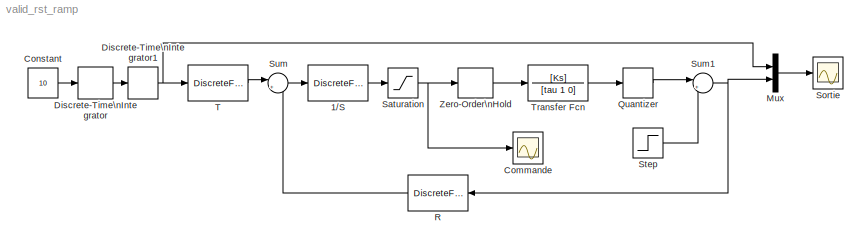
MODEL valid_rst_ramp
KIND model
BLOCK [DiscreteFilter] 1//S
  Denominator = S
  InputPortMap = u0
  Ports = [1, 1]
  SID = 1
  SampleTime = Te
BLOCK [Scope] Commande
  Floating = off
  NumInputPorts = 1
  Ports = [1]
  SID = 2
  ScopeSpecificationString = Simulink.scopes.TimeScopeBlockCfg('CurrentConfiguration', extmgr.ConfigurationSet(extmgr.Configuration('Core','General UI',true),extmgr.Configuration('Core','Source UI',true),extmgr.Configuration('Sources','WiredSimulink',true,'DataLoggingVariableName','ScopeData1','DataLoggingSaveFormat','StructureWithTime','DataLoggingLimitDataPoints',true,'DataLoggingDecimation','1','DataLoggingDecimateData',tr...<+955ch>
BLOCK [Constant] Constant
  SID = 3
  Value = 10
BLOCK [DiscreteIntegrator] Discrete-Time\nIntegrator
  ICPrevOutput = DiscIntNeverNeededParam
  ICPrevScaledInput = DiscIntNeverNeededParam
  Ports = [1, 1]
  SID = 4
  SampleTime = Te
BLOCK [DiscreteIntegrator] Discrete-Time\nIntegrator1
  ICPrevOutput = DiscIntNeverNeededParam
  ICPrevScaledInput = DiscIntNeverNeededParam
  Ports = [1, 1]
  SID = 5
  SampleTime = Te
BLOCK [Mux] Mux
  DisplayOption = bar
  Inputs = 2
  Ports = [2, 1]
  SID = 6
BLOCK [Quantizer] Quantizer
  QuantizationInterval = 1/180*pi
  SID = 7
BLOCK [DiscreteFilter] R
  Denominator = [1]
  InputPortMap = u0
  Numerator = R
  Ports = [1, 1]
  SID = 8
  SampleTime = Te
BLOCK [Saturate] Saturation
  InputPortMap = u0
  LowerLimit = -100
  Ports = [1, 1]
  SID = 9
  UpperLimit = 100
BLOCK [Scope] Sortie
  Floating = off
  NumInputPorts = 1
  Ports = [1]
  SID = 10
  ScopeSpecificationString = Simulink.scopes.TimeScopeBlockCfg('CurrentConfiguration', extmgr.ConfigurationSet(extmgr.Configuration('Core','General UI',true),extmgr.Configuration('Core','Source UI',true),extmgr.Configuration('Sources','WiredSimulink',true,'DataLoggingSaveFormat','StructureWithTime','DataLoggingLimitDataPoints',true,'DataLoggingDecimation','1','DataLoggingDecimateData',true),extmgr.Configuration('Visuals','Tim...<+917ch>
BLOCK [Step] Step
  After = 0.5
  SID = 11
  SampleTime = 0
  Time = 0.5
BLOCK [Sum] Sum
  IconShape = round
  InputSameDT = off
  Inputs = |+-
  OutDataTypeStr = Inherit: Inherit via internal rule
  Ports = [2, 1]
  SID = 12
  SaturateOnIntegerOverflow = off
BLOCK [Sum] Sum1
  IconShape = round
  InputSameDT = off
  Inputs = |++
  OutDataTypeStr = Inherit: Inherit via internal rule
  Ports = [2, 1]
  SID = 13
  SaturateOnIntegerOverflow = off
BLOCK [DiscreteFilter] T
  Denominator = [1]
  InputPortMap = u0
  Numerator = T
  Ports = [1, 1]
  SID = 14
  SampleTime = Te
BLOCK [TransferFcn] Transfer Fcn
  Denominator = [tau 1 0]
  Numerator = [Ks]
  SID = 15
BLOCK [ZeroOrderHold] Zero-Order\nHold
  SID = 16
  SampleTime = Te
LINE 1//S:1 -> Saturation:1
LINE Constant:1 -> Discrete-Time\nIntegrator:1
NET Discrete-Time\nIntegrator1:1 -> Mux:1, T:1
LINE Discrete-Time\nIntegrator:1 -> Discrete-Time\nIntegrator1:1
LINE Mux:1 -> Sortie:1
LINE Quantizer:1 -> Sum1:1
LINE R:1 -> Sum:2
NET Saturation:1 -> Commande:1, Zero-Order\nHold:1
LINE Step:1 -> Sum1:2
NET Sum1:1 -> Mux:2, R:1
LINE Sum:1 -> 1//S:1
LINE T:1 -> Sum:1
LINE Transfer Fcn:1 -> Quantizer:1
LINE Zero-Order\nHold:1 -> Transfer Fcn:1
note: NET lines group one-source signal fan-out (src -> all destinations, sorted); 1:1 wires keep LINE
